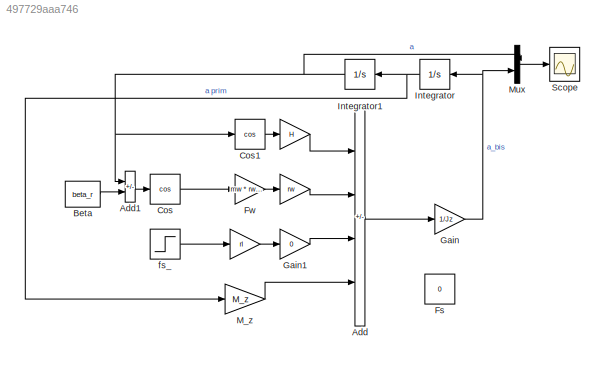
MODEL slx_497729aaa746
KIND model
CONFIG AbsTol = auto
CONFIG EnableMultiTasking = off
CONFIG FixedStep = auto
CONFIG MaxStep = auto
CONFIG MinStep = auto
CONFIG RelTol = 1e-3
CONFIG SampleTimeConstraint = Unconstrained
CONFIG Solver = VariableStepAuto
CONFIG SolverName = VariableStepAuto
CONFIG StartTime = 0.0
CONFIG StopTime = 20
BLOCK [Gain]  
  Gain = H
BLOCK [Gain]   
  Gain = rw
BLOCK [Gain]    
  Gain = rl
BLOCK [Sum] Add
  IconShape = rectangular
  Inputs = +---
  Ports = [4, 1]
BLOCK [Sum] Add1
  IconShape = rectangular
  Inputs = -+
  Ports = [2, 1]
BLOCK [Constant] Beta
  Value = beta_r
BLOCK [Trigonometry] Cos
  Operator = cos
  Ports = [1, 1]
BLOCK [Trigonometry] Cos1
  Operator = cos
  Ports = [1, 1]
BLOCK [Constant] Fs
  Value = 0
BLOCK [Gain] Fw
  Gain = mw * rw / mw / rw
BLOCK [Gain] Gain
  Gain = 1/Jz
BLOCK [Gain] Gain1
  Gain = 0
BLOCK [Integrator] Integrator
  Ports = [1, 1]
BLOCK [Integrator] Integrator1
  Ports = [1, 1]
BLOCK [Gain] M_z
  Gain = M_z
BLOCK [Mux] Mux
  DisplayOption = bar
  Inputs = 2
  Ports = [2, 1]
BLOCK [Scope] Scope
  Floating = off
  NumInputPorts = 1
  Ports = [1]
  ScopeSpecificationString = Simulink.scopes.TimeScopeBlockCfg('CurrentConfiguration', extmgr.ConfigurationSet(extmgr.Configuration('Core','General UI',true),extmgr.Configuration('Core','Source UI',true),extmgr.Configuration('Sources','WiredSimulink',true),extmgr.Configuration('Visuals','Time Domain',true,'SerializedDisplays',{struct('MinYLimReal','-1.28447','MaxYLimReal','1.10965','YLabelReal','','MinYLimMag','0.00000','MaxY...<+1359ch>
BLOCK [Step] fs_
  After = 0
  SampleTime = 0
  Time = 0
LINE    :1 -> Gain1:1
LINE   :1 -> Add:2
LINE  :1 -> Add:1
LINE Add1:1 -> Cos:1
LINE Add:1 -> Gain:1
LINE Beta:1 -> Add1:2
LINE Cos1:1 ->  :1
LINE Cos:1 -> Fw:1
LINE Fw:1 ->   :1
LINE Gain1:1 -> Add:3
NET Gain:1 -> Integrator:1, Mux:2
NET Integrator1:1 -> Add1:1, Cos1:1, Mux:1
NET Integrator:1 -> Integrator1:1, M_z:1
LINE M_z:1 -> Add:4
LINE Mux:1 -> Scope:1
LINE fs_:1 ->    :1
note: NET lines group one-source signal fan-out (src -> all destinations, sorted); 1:1 wires keep LINE
